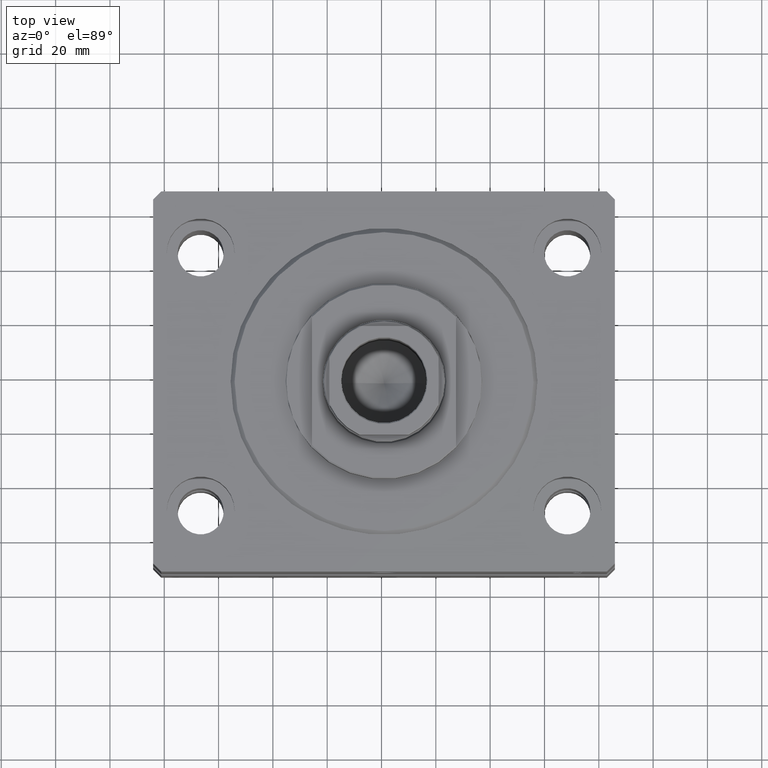
[diagram: clean part render]
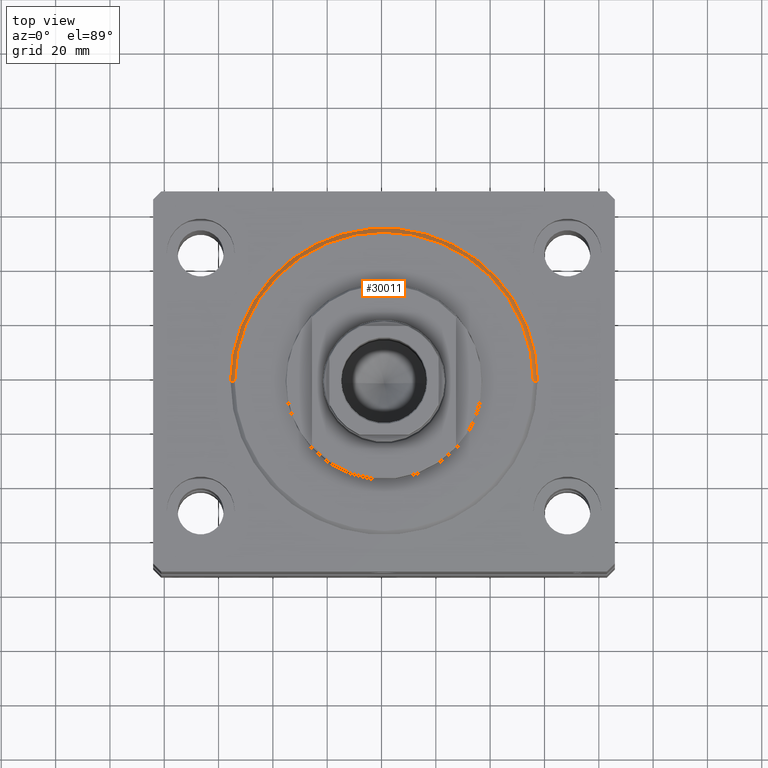
[diagram: same view with one face highlighted and labeled with its STEP entity id]
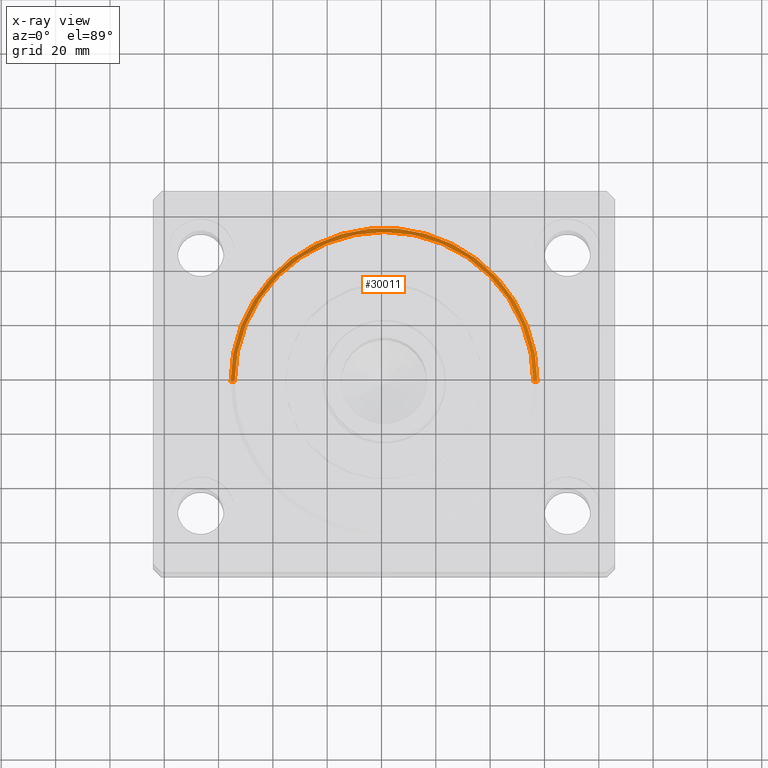
[diagram: x-ray of the same camera — body ghosted, the highlighted face saturated]
A machine part, top view. The second image highlights one B-rep face of the part: STEP entity #30011.
The next image is the same camera in x-ray: the body ghosted, the highlighted face saturated — about 0% of this face is hidden behind the body in this view.
In plain terms, the highlighted conical surface has half-angle 45 deg.
Its self-contained STEP definition (entity closure, byte-faithful):
#936 = VECTOR ( 'NONE', #15691, 1000.000000000000000 ) ;
#1328 = LINE ( 'NONE', #43829, #10692 ) ;
#3718 = AXIS2_PLACEMENT_3D ( 'NONE', #15881, #26276, #11760 ) ;
#4558 = ORIENTED_EDGE ( 'NONE', *, *, #5017, .F. ) ;
#5017 = EDGE_CURVE ( 'NONE', #33193, #11920, #30330, .T. ) ;
#5313 = CARTESIAN_POINT ( 'NONE',  ( 56.50000000000000711, 0.000000000000000000, 1.499999999999994449 ) ) ;
#5740 = CONICAL_SURFACE ( 'NONE', #20481, 56.50000000000000711, 0.7853981633974460586 ) ;
#10081 = DIRECTION ( 'NONE',  ( -0.000000000000000000, -0.000000000000000000, 1.000000000000000000 ) ) ;
#10334 = VERTEX_POINT ( 'NONE', #45347 ) ;
#10692 = VECTOR ( 'NONE', #18853, 1000.000000000000000 ) ;
#11760 = DIRECTION ( 'NONE',  ( 1.000000000000000000, 0.000000000000000000, 0.000000000000000000 ) ) ;
#11920 = VERTEX_POINT ( 'NONE', #31552 ) ;
#12245 = EDGE_CURVE ( 'NONE', #42171, #33193, #36503, .T. ) ;
#13301 = EDGE_LOOP ( 'NONE', ( #25378, #20453, #4558, #42983 ) ) ;
#15691 = DIRECTION ( 'NONE',  ( 0.7071067811865459074, 0.000000000000000000, 0.7071067811865491270 ) ) ;
#15881 = CARTESIAN_POINT ( 'NONE',  ( 0.000000000000000000, 0.000000000000000000, 0.000000000000000000 ) ) ;
#16307 = DIRECTION ( 'NONE',  ( 1.000000000000000000, 0.000000000000000000, 0.000000000000000000 ) ) ;
#18853 = DIRECTION ( 'NONE',  ( -0.7071067811865459074, 8.659560562354911904E-17, 0.7071067811865491270 ) ) ;
#20453 = ORIENTED_EDGE ( 'NONE', *, *, #38901, .T. ) ;
#20481 = AXIS2_PLACEMENT_3D ( 'NONE', #33873, #10081, #16307 ) ;
#22215 = AXIS2_PLACEMENT_3D ( 'NONE', #27039, #30967, #45548 ) ;
#25378 = ORIENTED_EDGE ( 'NONE', *, *, #32338, .F. ) ;
#26276 = DIRECTION ( 'NONE',  ( -0.000000000000000000, -0.000000000000000000, -1.000000000000000000 ) ) ;
#27039 = CARTESIAN_POINT ( 'NONE',  ( 0.000000000000000000, 0.000000000000000000, 1.499999999999994449 ) ) ;
#28028 = CIRCLE ( 'NONE', #3718, 55.00000000000002132 ) ;
#30011 = ADVANCED_FACE ( 'NONE', ( #44748 ), #5740, .T. ) ;
#30330 = CIRCLE ( 'NONE', #22215, 56.50000000000000711 ) ;
#30967 = DIRECTION ( 'NONE',  ( -0.000000000000000000, -0.000000000000000000, 1.000000000000000000 ) ) ;
#31552 = CARTESIAN_POINT ( 'NONE',  ( -56.50000000000000711, 0.000000000000000000, 1.499999999999994449 ) ) ;
#32338 = EDGE_CURVE ( 'NONE', #10334, #42171, #28028, .T. ) ;
#33193 = VERTEX_POINT ( 'NONE', #41317 ) ;
#33873 = CARTESIAN_POINT ( 'NONE',  ( 0.000000000000000000, 0.000000000000000000, 1.499999999999994449 ) ) ;
#36503 = LINE ( 'NONE', #5313, #936 ) ;
#37508 = CARTESIAN_POINT ( 'NONE',  ( 55.00000000000002132, 0.000000000000000000, 0.000000000000000000 ) ) ;
#38901 = EDGE_CURVE ( 'NONE', #10334, #11920, #1328, .T. ) ;
#41317 = CARTESIAN_POINT ( 'NONE',  ( 56.50000000000000711, 6.919254415182546126E-15, 1.499999999999994449 ) ) ;
#42171 = VERTEX_POINT ( 'NONE', #37508 ) ;
#42983 = ORIENTED_EDGE ( 'NONE', *, *, #12245, .F. ) ;
#43829 = CARTESIAN_POINT ( 'NONE',  ( -56.50000000000000711, 6.919254415182546126E-15, 1.499999999999994449 ) ) ;
#44748 = FACE_OUTER_BOUND ( 'NONE', #13301, .T. ) ;
#45347 = CARTESIAN_POINT ( 'NONE',  ( -55.00000000000002132, 6.827405905246496343E-15, 0.000000000000000000 ) ) ;
#45548 = DIRECTION ( 'NONE',  ( 1.000000000000000000, 0.000000000000000000, 0.000000000000000000 ) ) ;